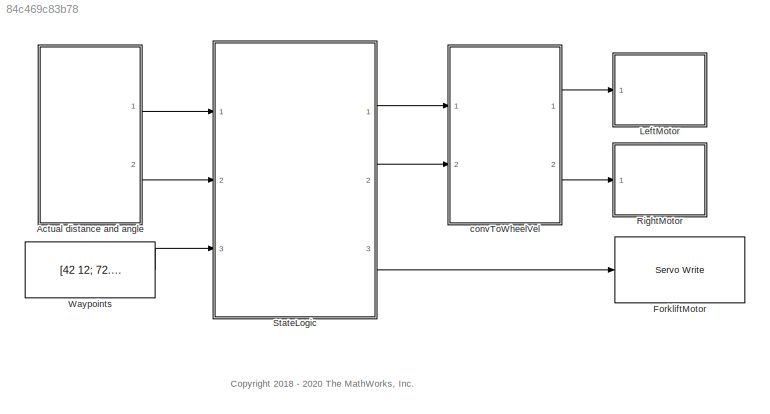
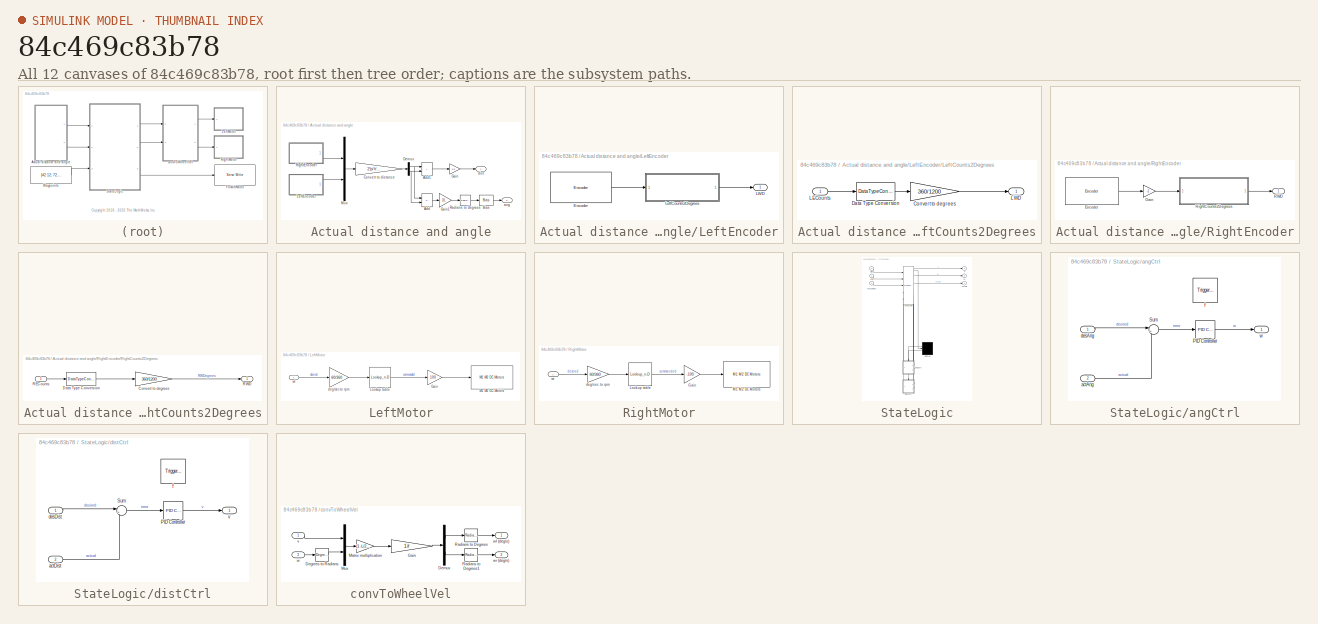
[diagram: thumbnail index - all 12 canvases of the model, root first then tree order]
MODEL slx_84c469c83b78
KIND model
CONFIG AbsTol = auto
CONFIG EnableMultiTasking = on
CONFIG FixedStep = TS
CONFIG MaxStep = auto
CONFIG MinStep = auto
CONFIG PostLoadFcn = params\nload('motorResponse.mat')
CONFIG RelTol = 1e-3
CONFIG SampleTimeConstraint = Unconstrained
CONFIG Solver = FixedStepAuto
CONFIG SolverName = FixedStepAuto
CONFIG StartTime = 0.0
CONFIG StopTime = 100
WORKSPACE source: mxarray member
WORKSPACE TS = 0.01
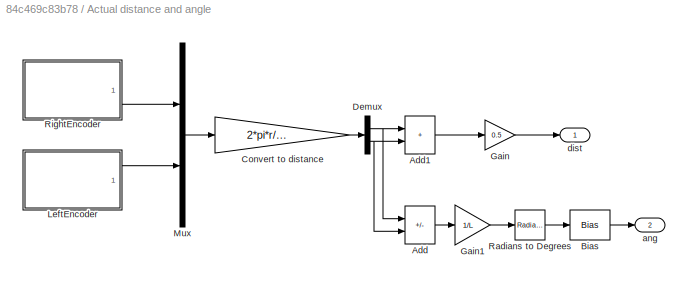
BLOCK [SubSystem] Actual distance and angle
  Ports = [0, 2]
  RequestExecContextInheritance = off
BLOCK [Sum] Actual distance and angle/Add
  IconShape = rectangular
  Inputs = +-
  Ports = [2, 1]
BLOCK [Sum] Actual distance and angle/Add1
  IconShape = rectangular
  Ports = [2, 1]
BLOCK [Bias] Actual distance and angle/Bias
  Bias = StartTheta
  SaturateOnIntegerOverflow = off
BLOCK [Gain] Actual distance and angle/Convert to distance
  Gain = 2*pi*r/360
BLOCK [Demux] Actual distance and angle/Demux
  Outputs = 2
  Ports = [1, 2]
BLOCK [Gain] Actual distance and angle/Gain
  Gain = 0.5
BLOCK [Gain] Actual distance and angle/Gain1
  Gain = 1/L
BLOCK [SubSystem] Actual distance and angle/LeftEncoder
  Ports = [0, 1]
  RequestExecContextInheritance = off
BLOCK [Reference] Actual distance and angle/LeftEncoder/Encoder  REF=arduinomotorcarrierlib/Encoder
  Ports = [0, 1]
  SourceBlock = arduinomotorcarrierlib/Encoder
  SourceProductBaseCode = ARDUINO
  SourceType = motorcarrier.blocks.mkrmotorcarrier_Encoder
BLOCK [Outport] Actual distance and angle/LeftEncoder/LWD
  VectorParamsAs1DForOutWhenUnconnected = off
BLOCK [SubSystem] Actual distance and angle/LeftEncoder/LeftCounts2Degrees
  Ports = [1, 1]
  RequestExecContextInheritance = off
BLOCK [Gain] Actual distance and angle/LeftEncoder/LeftCounts2Degrees/Convert to degrees
  Gain = 360/1200
BLOCK [DataTypeConversion] Actual distance and angle/LeftEncoder/LeftCounts2Degrees/Data Type Conversion
  OutDataTypeStr = double
  RndMeth = Floor
  SaturateOnIntegerOverflow = off
BLOCK [Inport] Actual distance and angle/LeftEncoder/LeftCounts2Degrees/LECounts
BLOCK [Outport] Actual distance and angle/LeftEncoder/LeftCounts2Degrees/LWD
  VectorParamsAs1DForOutWhenUnconnected = off
BLOCK [Mux] Actual distance and angle/Mux
  DisplayOption = bar
  Inputs = 2
  Ports = [2, 1]
BLOCK [Reference] Actual distance and angle/Radians to Degrees  REF=simulink_extras/Transformations/Radians
to Degrees
  Ports = [1, 1]
  SourceBlock = simulink_extras/Transformations/Radians\nto Degrees
  SourceProductBaseCode = SL
  SourceType = RadiansToDegrees
BLOCK [SubSystem] Actual distance and angle/RightEncoder
  Ports = [0, 1]
  RequestExecContextInheritance = off
BLOCK [Reference] Actual distance and angle/RightEncoder/Encoder  REF=arduinomotorcarrierlib/Encoder
  Ports = [0, 1]
  SourceBlock = arduinomotorcarrierlib/Encoder
  SourceProductBaseCode = ARDUINO
  SourceType = motorcarrier.blocks.mkrmotorcarrier_Encoder
BLOCK [Gain] Actual distance and angle/RightEncoder/Gain
  Gain = -1
BLOCK [Outport] Actual distance and angle/RightEncoder/RWD
  VectorParamsAs1DForOutWhenUnconnected = off
BLOCK [SubSystem] Actual distance and angle/RightEncoder/RightCounts2Degrees
  Ports = [1, 1]
  RequestExecContextInheritance = off
BLOCK [Gain] Actual distance and angle/RightEncoder/RightCounts2Degrees/Convert to degrees
  Gain = 360/1200
BLOCK [DataTypeConversion] Actual distance and angle/RightEncoder/RightCounts2Degrees/Data Type Conversion
  OutDataTypeStr = double
  RndMeth = Floor
  SaturateOnIntegerOverflow = off
BLOCK [Inport] Actual distance and angle/RightEncoder/RightCounts2Degrees/RECounts
BLOCK [Outport] Actual distance and angle/RightEncoder/RightCounts2Degrees/RWD
  VectorParamsAs1DForOutWhenUnconnected = off
BLOCK [Outport] Actual distance and angle/ang
  Port = 2
  VectorParamsAs1DForOutWhenUnconnected = off
BLOCK [Outport] Actual distance and angle/dist
  VectorParamsAs1DForOutWhenUnconnected = off
BLOCK [Reference] ForkliftMotor  REF=arduinomotorcarrierlib/Servo Write
  Ports = [1]
  SourceBlock = arduinomotorcarrierlib/Servo Write
  SourceProductBaseCode = ARDUINO
  SourceType = MKR Servo Motor
BLOCK [SubSystem] LeftMotor
  Ports = [1]
  RequestExecContextInheritance = off
BLOCK [Gain] LeftMotor/Gain
  Gain = 100
BLOCK [Lookup_n-D] LeftMotor/Lookup table
  BreakpointsForDimension1 = speedMono_L
  InternalRulePriority = Speed
  NumberOfTableDimensions = 1
  Ports = [1, 1]
  RndMeth = Simplest
  Table = PWMcmdMono_L
  UseLastTableValue = on
BLOCK [Reference] LeftMotor/M1 M2 DC Motors  REF=arduinomotorcarrierlib/M1 M2 DC Motors
  Ports = [1]
  SourceBlock = arduinomotorcarrierlib/M1 M2 DC Motors
  SourceProductName = Simulink Support Package for Arduino Hardware
  SourceType = DC Motor
BLOCK [Gain] LeftMotor/deg//sec to rpm
  Gain = 60/360
BLOCK [Inport] LeftMotor/wl
BLOCK [SubSystem] RightMotor
  Ports = [1]
  RequestExecContextInheritance = off
BLOCK [Gain] RightMotor/Gain
  Gain = -100
BLOCK [Lookup_n-D] RightMotor/Lookup table
  BreakpointsForDimension1 = speedMono_R
  InternalRulePriority = Speed
  NumberOfTableDimensions = 1
  Ports = [1, 1]
  RndMeth = Simplest
  Table = PWMcmdMono_R
  UseLastTableValue = on
BLOCK [Reference] RightMotor/M1 M2 DC Motors  REF=arduinomotorcarrierlib/M1 M2 DC Motors
  Ports = [1]
  SourceBlock = arduinomotorcarrierlib/M1 M2 DC Motors
  SourceProductName = Simulink Support Package for Arduino Hardware
  SourceType = DC Motor
BLOCK [Gain] RightMotor/deg//sec to rpm
  Gain = 60/360
BLOCK [Inport] RightMotor/wr
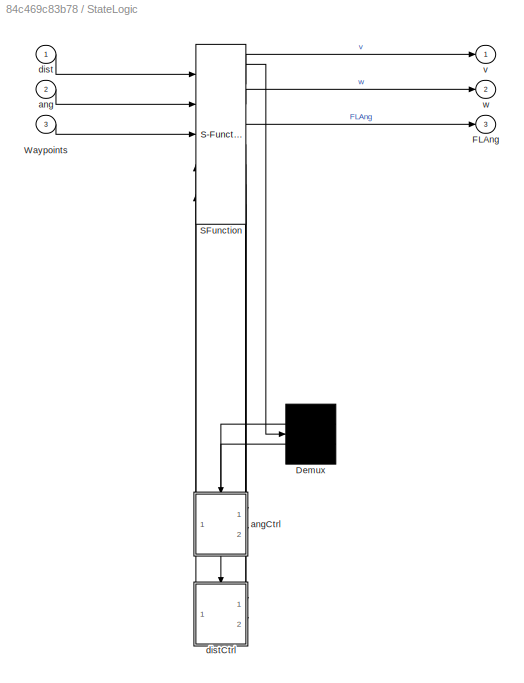
BLOCK [SubSystem] StateLogic
  ErrorFcn = Stateflow.Translate.translate
  PermitHierarchicalResolution = ExplicitOnly
  Ports = [3, 3]
  RequestExecContextInheritance = off
  SFBlockType = Chart
  TreatAsAtomicUnit = on
BLOCK [Demux] StateLogic/ Demux 
  Outputs = 2
  Ports = [1, 2]
BLOCK [S-Function] StateLogic/ SFunction 
  EnableBusSupport = off
  FunctionName = sf_sfun
  PortCounts = [5 8]
  Ports = [5, 8]
  SFcnIsStateOwnerBlock = off
  SFunctionDeploymentMode = off
  Tag = Stateflow S-Function 3
BLOCK [Outport] StateLogic/FLAng
  Port = 3
  VectorParamsAs1DForOutWhenUnconnected = off
BLOCK [Inport] StateLogic/Waypoints
  Port = 3
BLOCK [Inport] StateLogic/ang
  Port = 2
BLOCK [SubSystem] StateLogic/angCtrl
  Ports = [2, 1, 0, 1]
  PreDeleteFcn = Stateflow.SLINSF.SimulinkMan.removePreDeleteFcn
  RequestExecContextInheritance = off
  UndoDeleteFcn = Stateflow.SLINSF.SimulinkMan.restorePreDeleteFcn
BLOCK [Reference] StateLogic/angCtrl/PID Controller  REF=simulink/Continuous/PID Controller
  Ports = [1, 1]
  SourceBlock = simulink/Continuous/PID Controller
  SourceProductBaseCode = SL
  SourceType = PID 1dof
BLOCK [Sum] StateLogic/angCtrl/Sum
  Inputs = |+-
  Ports = [2, 1]
BLOCK [Inport] StateLogic/angCtrl/actAng
  OutDataTypeStr = double
  Port = 2
  PortDimensions = 1
  SignalType = real
  VarSizeSig = No
BLOCK [Inport] StateLogic/angCtrl/desAng
  OutDataTypeStr = double
  PortDimensions = 1
  SignalType = real
  VarSizeSig = No
BLOCK [TriggerPort] StateLogic/angCtrl/f
  CopyFcn = Stateflow.SLINSF.SimulinkMan.removeBlockPreDeleteFcn
  Ports = []
  PreDeleteFcn = Stateflow.SLINSF.SimulinkMan.unsafePredeleteFcn
  StatesWhenEnabling = held
  TriggerType = function-call
  VariantControl = (inherit)
BLOCK [Outport] StateLogic/angCtrl/w
  VectorParamsAs1DForOutWhenUnconnected = off
BLOCK [Inport] StateLogic/dist
BLOCK [SubSystem] StateLogic/distCtrl
  Ports = [2, 1, 0, 1]
  PreDeleteFcn = Stateflow.SLINSF.SimulinkMan.removePreDeleteFcn
  RequestExecContextInheritance = off
  UndoDeleteFcn = Stateflow.SLINSF.SimulinkMan.restorePreDeleteFcn
BLOCK [Reference] StateLogic/distCtrl/PID Controller  REF=simulink/Continuous/PID Controller
  Ports = [1, 1]
  SourceBlock = simulink/Continuous/PID Controller
  SourceProductBaseCode = SL
  SourceType = PID 1dof
BLOCK [Sum] StateLogic/distCtrl/Sum
  Inputs = |+-
  Ports = [2, 1]
BLOCK [Inport] StateLogic/distCtrl/actDist
  OutDataTypeStr = double
  Port = 2
  PortDimensions = 1
  SignalType = real
  VarSizeSig = No
BLOCK [Inport] StateLogic/distCtrl/desDist
  OutDataTypeStr = double
  PortDimensions = 1
  SignalType = real
  VarSizeSig = No
BLOCK [TriggerPort] StateLogic/distCtrl/f
  CopyFcn = Stateflow.SLINSF.SimulinkMan.removeBlockPreDeleteFcn
  Ports = []
  PreDeleteFcn = Stateflow.SLINSF.SimulinkMan.unsafePredeleteFcn
  StatesWhenEnabling = held
  TriggerType = function-call
  VariantControl = (inherit)
BLOCK [Outport] StateLogic/distCtrl/v
  VectorParamsAs1DForOutWhenUnconnected = off
BLOCK [Outport] StateLogic/v
  VectorParamsAs1DForOutWhenUnconnected = off
BLOCK [Outport] StateLogic/w
  Port = 2
  VectorParamsAs1DForOutWhenUnconnected = off
BLOCK [Constant] Waypoints
  Value = [42 12; 72.5 54; 90 90]
BLOCK [SubSystem] convToWheelVel
  Ports = [2, 2]
  RequestExecContextInheritance = off
BLOCK [Gain] convToWheelVel/ Gain
  Gain = 1/r
  Multiplication = Matrix(K*u)
BLOCK [Reference] convToWheelVel/Degrees to Radians  REF=simulink_extras/Transformations/Degrees to
Radians
  Ports = [1, 1]
  SourceBlock = simulink_extras/Transformations/Degrees to\nRadians
  SourceProductBaseCode = SL
  SourceType = DegreesToRadians
BLOCK [Demux] convToWheelVel/Demux
  Outputs = 2
  Ports = [1, 2]
BLOCK [Gain] convToWheelVel/Matrix multiplication
  Gain = [1 -L/2; 1 L/2]
  Multiplication = Matrix(K*u)
BLOCK [Mux] convToWheelVel/Mux
  DisplayOption = bar
  Inputs = 2
  Ports = [2, 1]
BLOCK [Reference] convToWheelVel/Radians to Degrees  REF=simulink_extras/Transformations/Radians
to Degrees
  Ports = [1, 1]
  SourceBlock = simulink_extras/Transformations/Radians\nto Degrees
  SourceProductBaseCode = SL
  SourceType = RadiansToDegrees
BLOCK [Reference] convToWheelVel/Radians to Degrees1  REF=simulink_extras/Transformations/Radians
to Degrees
  Ports = [1, 1]
  SourceBlock = simulink_extras/Transformations/Radians\nto Degrees
  SourceProductBaseCode = SL
  SourceType = RadiansToDegrees
BLOCK [Inport] convToWheelVel/v
BLOCK [Inport] convToWheelVel/w
  Port = 2
BLOCK [Outport] convToWheelVel/wl (deg//s)
  VectorParamsAs1DForOutWhenUnconnected = off
BLOCK [Outport] convToWheelVel/wr (deg//s)
  Port = 2
  VectorParamsAs1DForOutWhenUnconnected = off
ANNOTATION (root): <copyright redacted>
LINE Actual distance and angle/Add1:1 -> Actual distance and angle/Gain:1
LINE Actual distance and angle/Add:1 -> Actual distance and angle/Gain1:1
LINE Actual distance and angle/Bias:1 -> Actual distance and angle/ang:1
LINE Actual distance and angle/Convert to distance:1 -> Actual distance and angle/Demux:1
NET Actual distance and angle/Demux:1 -> Actual distance and angle/Add1:1, Actual distance and angle/Add:1
NET Actual distance and angle/Demux:2 -> Actual distance and angle/Add1:2, Actual distance and angle/Add:2
LINE Actual distance and angle/Gain1:1 -> Actual distance and angle/Radians to Degrees:1
LINE Actual distance and angle/Gain:1 -> Actual distance and angle/dist:1
LINE Actual distance and angle/LeftEncoder/Encoder:1 -> Actual distance and angle/LeftEncoder/LeftCounts2Degrees:1
LINE Actual distance and angle/LeftEncoder/LeftCounts2Degrees/Convert to degrees:1 -> Actual distance and angle/LeftEncoder/LeftCounts2Degrees/LWD:1
LINE Actual distance and angle/LeftEncoder/LeftCounts2Degrees/Data Type Conversion:1 -> Actual distance and angle/LeftEncoder/LeftCounts2Degrees/Convert to degrees:1
LINE Actual distance and angle/LeftEncoder/LeftCounts2Degrees/LECounts:1 -> Actual distance and angle/LeftEncoder/LeftCounts2Degrees/Data Type Conversion:1
LINE Actual distance and angle/LeftEncoder/LeftCounts2Degrees:1 -> Actual distance and angle/LeftEncoder/LWD:1
LINE Actual distance and angle/LeftEncoder:1 -> Actual distance and angle/Mux:2
LINE Actual distance and angle/Mux:1 -> Actual distance and angle/Convert to distance:1
LINE Actual distance and angle/Radians to Degrees:1 -> Actual distance and angle/Bias:1
LINE Actual distance and angle/RightEncoder/Encoder:1 -> Actual distance and angle/RightEncoder/Gain:1
LINE Actual distance and angle/RightEncoder/Gain:1 -> Actual distance and angle/RightEncoder/RightCounts2Degrees:1
LINE Actual distance and angle/RightEncoder/RightCounts2Degrees/Convert to degrees:1 -> Actual distance and angle/RightEncoder/RightCounts2Degrees/RWD:1
LINE Actual distance and angle/RightEncoder/RightCounts2Degrees/Data Type Conversion:1 -> Actual distance and angle/RightEncoder/RightCounts2Degrees/Convert to degrees:1
LINE Actual distance and angle/RightEncoder/RightCounts2Degrees/RECounts:1 -> Actual distance and angle/RightEncoder/RightCounts2Degrees/Data Type Conversion:1
LINE Actual distance and angle/RightEncoder/RightCounts2Degrees:1 -> Actual distance and angle/RightEncoder/RWD:1
LINE Actual distance and angle/RightEncoder:1 -> Actual distance and angle/Mux:1
LINE Actual distance and angle:1 -> StateLogic:1
LINE Actual distance and angle:2 -> StateLogic:2
LINE LeftMotor/Gain:1 -> LeftMotor/M1 M2 DC Motors:1
LINE LeftMotor/Lookup table:1 -> LeftMotor/Gain:1
LINE LeftMotor/deg//sec to rpm:1 -> LeftMotor/Lookup table:1
LINE LeftMotor/wl:1 -> LeftMotor/deg//sec to rpm:1
LINE RightMotor/Gain:1 -> RightMotor/M1 M2 DC Motors:1
LINE RightMotor/Lookup table:1 -> RightMotor/Gain:1
LINE RightMotor/deg//sec to rpm:1 -> RightMotor/Lookup table:1
LINE RightMotor/wr:1 -> RightMotor/deg//sec to rpm:1
LINE StateLogic:1 -> convToWheelVel:1
LINE StateLogic:2 -> convToWheelVel:2
LINE StateLogic:3 -> ForkliftMotor:1
LINE Waypoints:1 -> StateLogic:3
LINE convToWheelVel/ Gain:1 -> convToWheelVel/Demux:1
LINE convToWheelVel/Degrees to Radians:1 -> convToWheelVel/Mux:2
LINE convToWheelVel/Demux:1 -> convToWheelVel/Radians to Degrees:1
LINE convToWheelVel/Demux:2 -> convToWheelVel/Radians to Degrees1:1
LINE convToWheelVel/Matrix multiplication:1 -> convToWheelVel/ Gain:1
LINE convToWheelVel/Mux:1 -> convToWheelVel/Matrix multiplication:1
LINE convToWheelVel/Radians to Degrees1:1 -> convToWheelVel/wr (deg//s):1
LINE convToWheelVel/Radians to Degrees:1 -> convToWheelVel/wl (deg//s):1
LINE convToWheelVel/v:1 -> convToWheelVel/Mux:1
LINE convToWheelVel/w:1 -> convToWheelVel/Degrees to Radians:1
LINE convToWheelVel:1 -> LeftMotor:1
LINE convToWheelVel:2 -> RightMotor:1
note: NET lines group one-source signal fan-out (src -> all destinations, sorted); 1:1 wires keep LINE
CHART StateLogic states=15 transitions=19
  STATE_LABEL 'Pause\nentry:\nv = 0; w= 0; FLAng = 125;\n'
  STATE_LABEL 'desAngle  = calcAngle(Index)'
  STATE_LABEL 'SCRIPT:\nfunction desAngle  = calcAngle(Index)\n\ntoReachX = Waypoints(Index+1,1);\ntoReachY = Waypoints(Index+1,2);\nx = Waypoints(Index,1);\ny = Waypoints(Index,2);\ndistX = toReachX - x;\ndistY = toReachY - y;\nif distX > 0 && distY >= 0\n    quadrant = 1;\nelseif distX <= 0 && distY > 0\n    quadrant = 2;\nelseif distX < 0 && distY <= 0\n    quadrant = 3;\nelseif distX >= 0 && distY < 0\n    quadrant = 4;\nels...<+341ch>'
  STATE_LABEL 'MoveForwardAndDrop\n'
  STATE_LABEL 'MoveToNextWayPoint\nen:\ndesDist = calcDist(WPIndex)+dist-10;\ndesAng = 0+ang;\ndu, ex:\nv = distCtrl(desDist, dist);\nw = angCtrl(desAng, ang);'
  STATE_LABEL 'DropForklift\nen, du, ex:\nv = 0;\nw = 0;\nFLAng = FLAng-1;\n'
  STATE_LABEL '[abs(desDist - dist) < 0.1]{WPIndex = WPIndex+1}'
  STATE_LABEL '[FLAng < 0]'
  STATE_LABEL 'MoveToNextWayPoint\nen:\ndesDist = calcDist(WPIndex)+dist-10;\ndesAng = 0+ang;\ndu, ex:\nv = distCtrl(desDist, dist);\nw = angCtrl(desAng, ang);'
  STATE_LABEL 'DropForklift\nen, du, ex:\nv = 0;\nw = 0;\nFLAng = FLAng-1;\n'
  STATE_LABEL 'Turn\nen:\ndesAng = calcAngle(WPIndex);\ndesDist = 0+dist;\ndu:\nv = distCtrl(desDist,dist);\nw = angCtrl(desAng,ang);'
  STATE_LABEL 'desDistance = calcDist(Index)'
  STATE_LABEL 'SCRIPT:\nfunction desDistance = calcDist(Index)\n\ntoReachX = Waypoints(Index+1,1);\ntoReachY = Waypoints(Index+1,2);\nx = Waypoints(Index,1);\ny = Waypoints(Index,2);\ndistX = toReachX - x;\ndistY = toReachY - y;\ndesDistance = sqrt(distX^2+distY^2);\nend\n'
  STATE_LABEL 'w = angCtrl(desAng,actAng)'
  STATE_LABEL 'MoveForwardAndPickUp\n'
  STATE_LABEL 'MoveToNextWayPoint\nen:\ndesDist = calcDist(WPIndex)+dist;\ndesAng = 0+ang;\ndu, ex:\nv = distCtrl(desDist, dist);\nw = angCtrl(desAng,ang);'
  STATE_LABEL 'DropForklift\nen, du, ex:\nv = 0;\nw = 0;\nFLAng = FLAng-1;\n'
  STATE_LABEL 'MoveRemaining\nen:\ndu, ex:\nv = distCtrl(desDist, dist);\nw = angCtrl(desAng,ang);'
  STATE_LABEL 'LiftForklift1\nen, du, ex:\nv = 0;\nw = 0;\nFLAng = FLAng+1;\n'
  STATE_LABEL '[abs(desDist - dist) < 20] {WPIndex = WPIndex+1}'
  STATE_LABEL '[FLAng < 0]'
  STATE_LABEL '[abs(desDist - dist) < 0.1]'
  STATE_LABEL '[FLAng > 124]'
  STATE_LABEL 'MoveToNextWayPoint\nen:\ndesDist = calcDist(WPIndex)+dist;\ndesAng = 0+ang;\ndu, ex:\nv = distCtrl(desDist, dist);\nw = angCtrl(desAng,ang);'
  STATE_LABEL 'DropForklift\nen, du, ex:\nv = 0;\nw = 0;\nFLAng = FLAng-1;\n'
  STATE_LABEL 'MoveRemaining\nen:\ndu, ex:\nv = distCtrl(desDist, dist);\nw = angCtrl(desAng,ang);'
  STATE_LABEL 'LiftForklift1\nen, du, ex:\nv = 0;\nw = 0;\nFLAng = FLAng+1;\n'
  STATE_LABEL 'v = distCtrl(desDist,actDist)'
  STATE_LABEL 'Stop\nen:\nv = 0;\nw = 0;\n'
CHART  states=0 transitions=0
